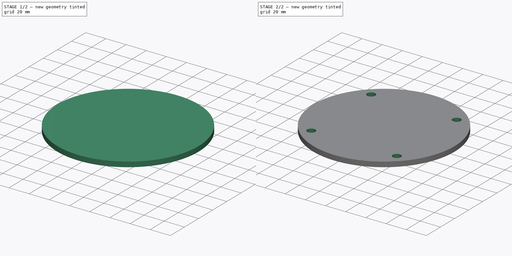
[diagram: build sequence overview — one tinted view per stage of 2, left to right]
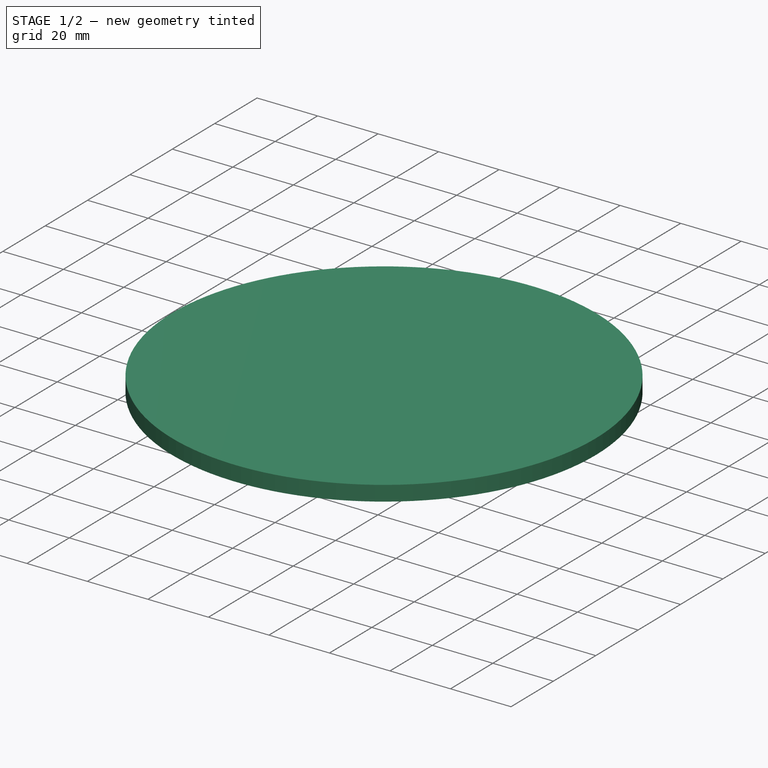
[diagram: stage 1 of 2 — iso view after this stage's code; geometry added in this stage tinted green]
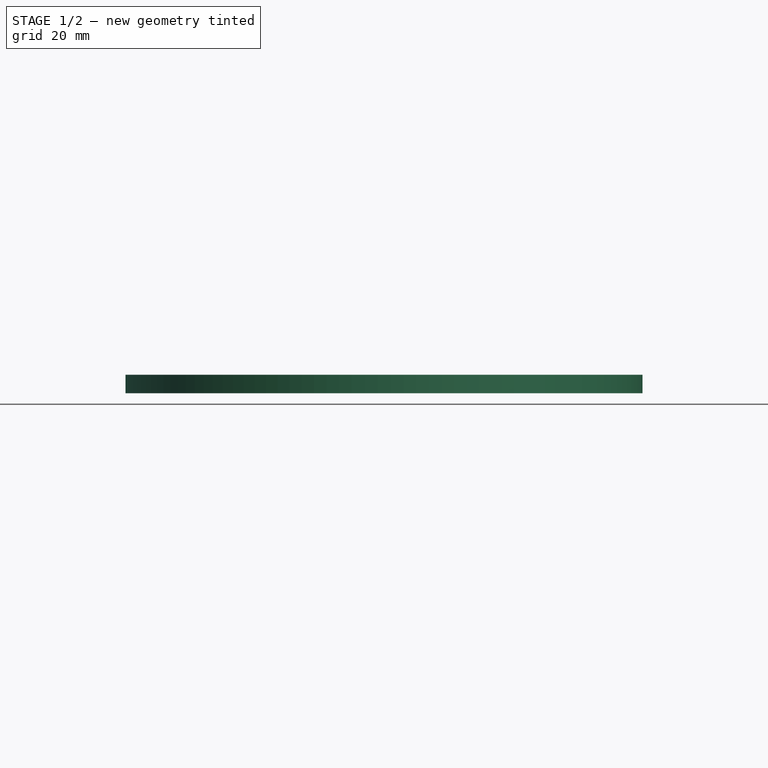
[diagram: stage 1 of 2 — front view after this stage's code; geometry added in this stage tinted green]
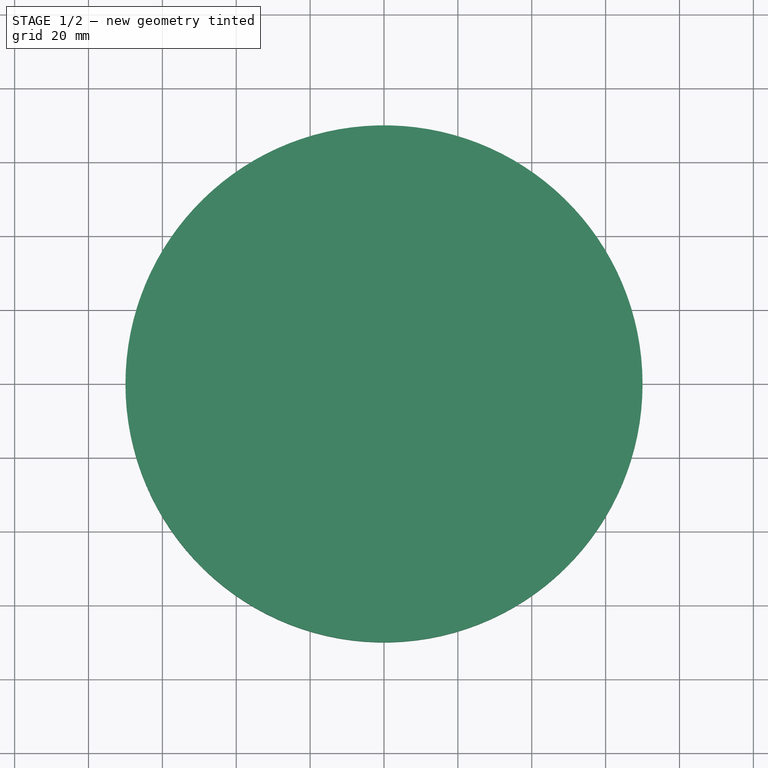
[diagram: stage 1 of 2 — top view after this stage's code; geometry added in this stage tinted green]
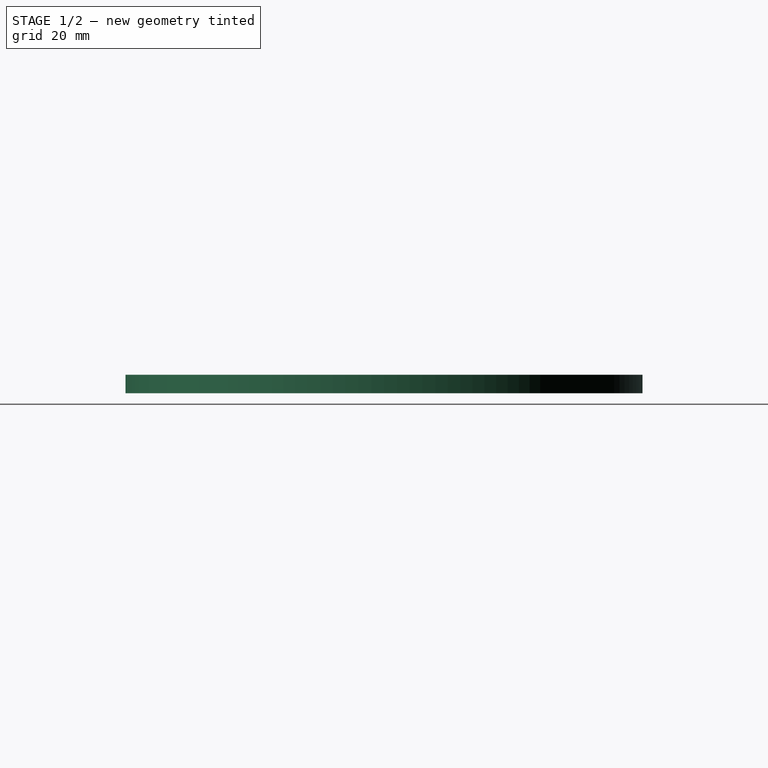
[diagram: stage 1 of 2 — right view after this stage's code; geometry added in this stage tinted green]
FCSTD DOCUMENT  (FreeCAD 0.16R6706 (Git))
Label: top_plate
License: All rights reserved
LicenseURL: http://en.wikipedia.org/wiki/All_rights_reserved
objects: Sketcher::SketchObject×2, PartDesign::Pad×1, PartDesign::Pocket×1
note: 6 computed .brp shape members not serialized (recipe doc carries the construction recipe); baked Part::Feature solids carry a one-line shape summary decoded from their .brp

FEATURE [Sketcher::SketchObject] Sketch
  sketch-geometry (1):
    g0: Circle CenterX=0 CenterY=0 CenterZ=0 NormalX=0 NormalY=0 NormalZ=1 Radius=70
  constraints (2):
    c: Coincident(g0,g-1)
    c: Radius(g0) = 70
FEATURE [PartDesign::Pad] Pad
  Length = 5
  Length2 = 100
  Sketch = -> Sketch
  Type = 0
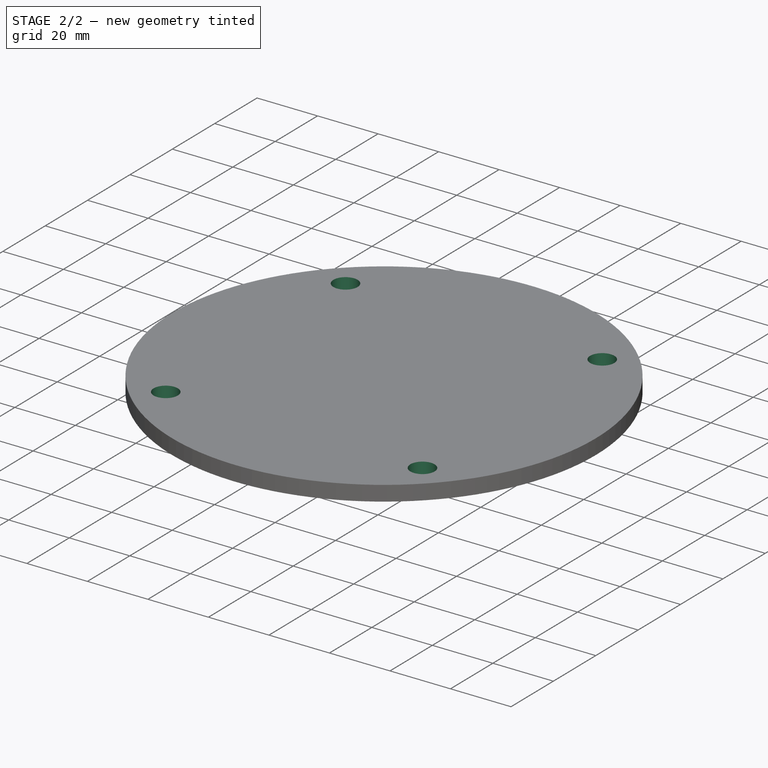
[diagram: stage 2 of 2 — iso view after this stage's code; geometry added in this stage tinted green]
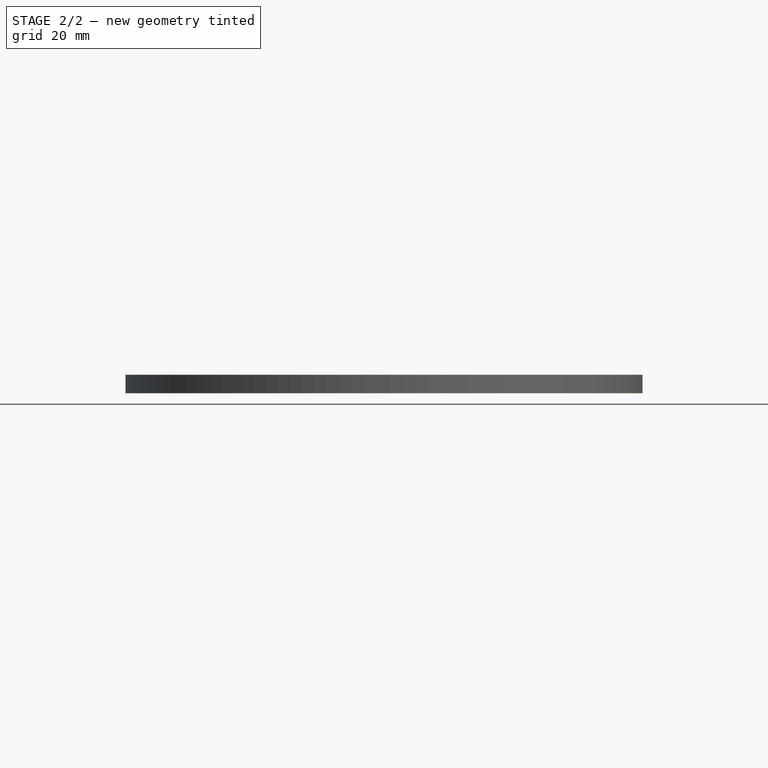
[diagram: stage 2 of 2 — front view after this stage's code; geometry added in this stage tinted green]
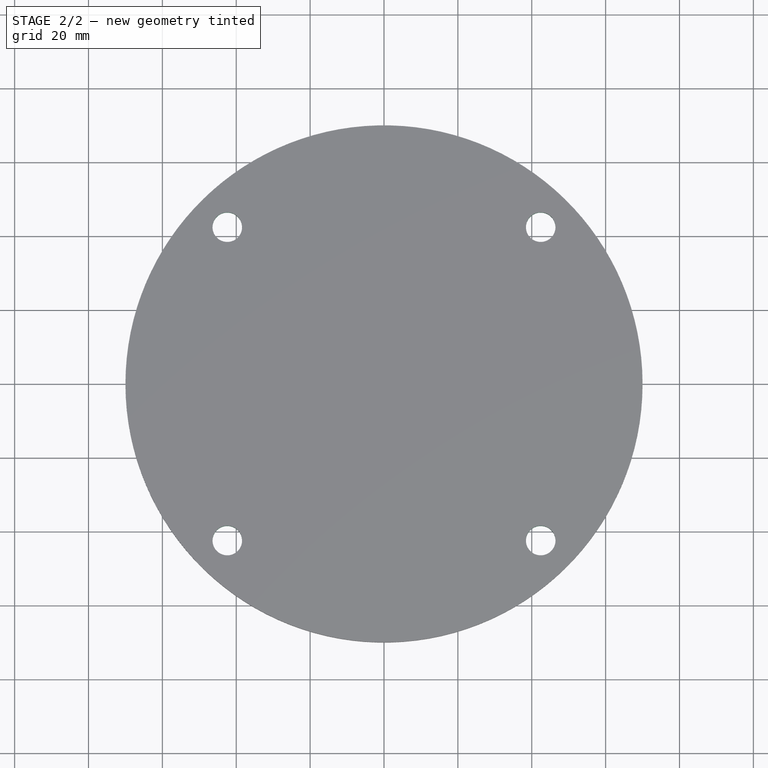
[diagram: stage 2 of 2 — top view after this stage's code; geometry added in this stage tinted green]
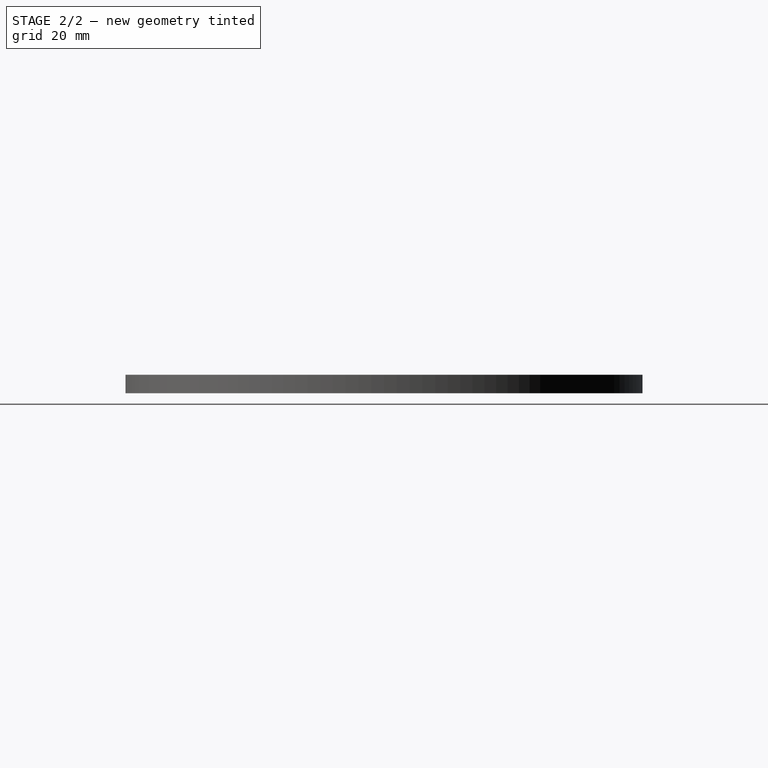
[diagram: stage 2 of 2 — right view after this stage's code; geometry added in this stage tinted green]
FEATURE [Sketcher::SketchObject] Sketch001
  ExternalGeometry = -> [Pad]
  Placement = pos=(0,0,5) rot=(0,0,1;0rad)
  Support = -> Pad [Face3]
  sketch-geometry (15):
    g0: Circle [constr] CenterX=0 CenterY=0 CenterZ=0 NormalX=0 NormalY=0 NormalZ=1 Radius=50
    g1: LineSegment [constr] StartX=-42.4264 StartY=42.4264 StartZ=0 EndX=42.4264 EndY=42.4264 EndZ=0
    g2: LineSegment [constr] StartX=42.4264 StartY=42.4264 StartZ=0 EndX=42.4264 EndY=-42.4264 EndZ=0
    g3: LineSegment [constr] StartX=42.4264 StartY=-42.4264 StartZ=0 EndX=-42.4264 EndY=-42.4264 EndZ=0
    g4: LineSegment [constr] StartX=-42.4264 StartY=-42.4264 StartZ=0 EndX=-42.4264 EndY=42.4264 EndZ=0
    g5: LineSegment [constr] StartX=-49.4975 StartY=49.4975 StartZ=0 EndX=-42.4264 EndY=42.4264 EndZ=0
    g6: LineSegment [constr] StartX=-42.4264 StartY=42.4264 StartZ=0 EndX=-35.3553 EndY=35.3553 EndZ=0
    g7: LineSegment [constr] StartX=35.3553 StartY=-35.3553 StartZ=0 EndX=42.4264 EndY=-42.4264 EndZ=0
    g8: LineSegment [constr] StartX=42.4264 StartY=-42.4264 StartZ=0 EndX=49.4975 EndY=-49.4975 EndZ=0
    g9: Circle CenterX=-42.4264 CenterY=42.4264 CenterZ=0 NormalX=0 NormalY=0 NormalZ=1 Radius=4
    g10: Circle CenterX=42.4264 CenterY=42.4264 CenterZ=0 NormalX=0 NormalY=0 NormalZ=1 Radius=4
    g11: Circle CenterX=42.4264 CenterY=-42.4264 CenterZ=0 NormalX=0 NormalY=0 NormalZ=1 Radius=4
    g12: Circle CenterX=-42.4264 CenterY=-42.4264 CenterZ=0 NormalX=0 NormalY=0 NormalZ=1 Radius=4
    g13: LineSegment [constr] StartX=42.4264 StartY=42.4264 StartZ=0 EndX=35.3553 EndY=35.3553 EndZ=0
    g14: LineSegment [constr] StartX=42.4264 StartY=42.4264 StartZ=0 EndX=49.4975 EndY=49.4975 EndZ=0
  constraints (40):
    c: Coincident(g0,g-1)
    c: Radius(g0) = 50
    c: Coincident(g1,g2)
    c: Coincident(g2,g3)
    c: Coincident(g3,g4)
    c: Coincident(g4,g1)
    c: Horizontal(g1)
    c: Horizontal(g3)
    c: Vertical(g2)
    c: Vertical(g4)
    c: Equal(g2,g3)
    c: PointOnObject(g5,g-3)
    c: Coincident(g5,g1)
    c: Coincident(g6,g1)
    c: PointOnObject(g6,g0)
    c: Perpendicular(g0,g6)
    c: Perpendicular(g-3,g5)
    c: Equal(g6,g5)
    c: PointOnObject(g7,g0)
    c: Coincident(g7,g2)
    c: PointOnObject(g8,g-3)
    c: Coincident(g8,g2)
    c: Equal(g8,g7)
    c: Perpendicular(g0,g7)
    c: Perpendicular(g-3,g8)
    c: Coincident(g9,g1)
    c: Coincident(g10,g1)
    c: Coincident(g11,g2)
    c: Coincident(g12,g3)
    c: Equal(g12,g9)
    c: Equal(g9,g10)
    c: Equal(g10,g11)
    c: Radius(g12) = 4
    c: Coincident(g13,g1)
    c: PointOnObject(g13,g0)
    c: Coincident(g14,g1)
    c: PointOnObject(g14,g-3)
    c: Perpendicular(g-3,g14)
    c: Perpendicular(g0,g13)
    c: Equal(g13,g14)
FEATURE [PartDesign::Pocket] Pocket
  Length = 5
  Sketch = -> Sketch001
  Type = 0
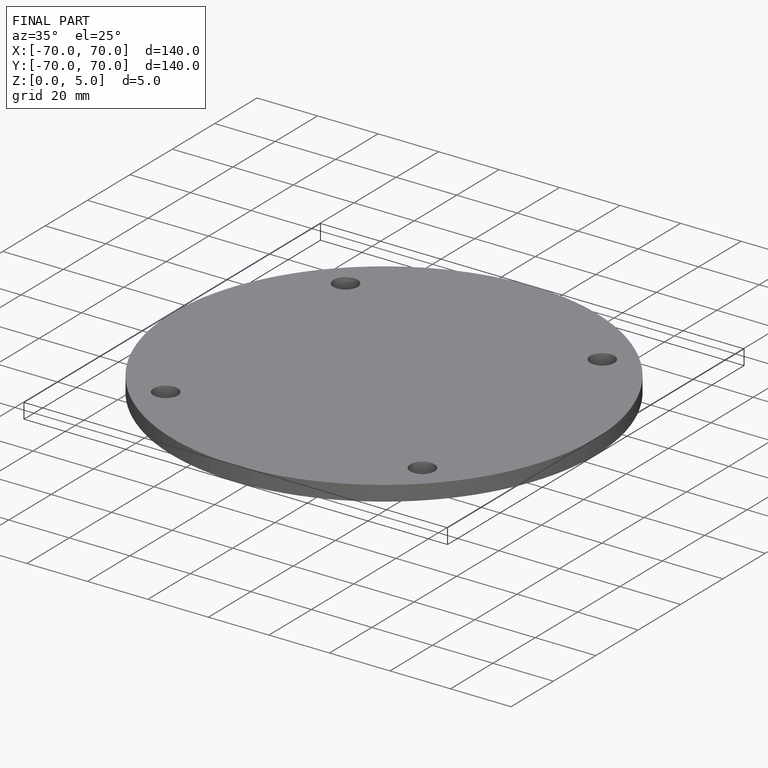
[diagram: finished part — iso view with bounding-box wireframe]
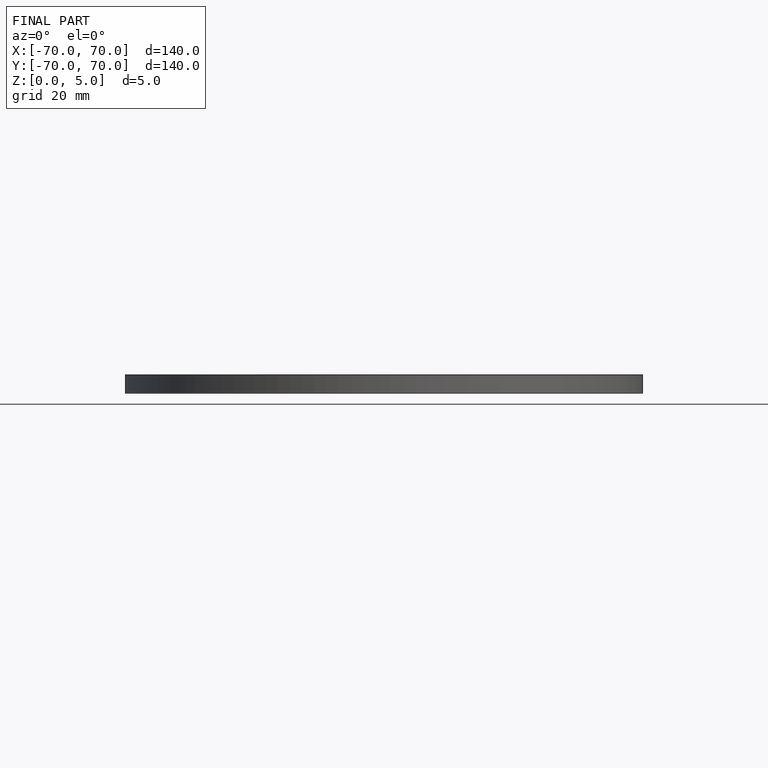
[diagram: finished part — front view with bounding-box wireframe]
